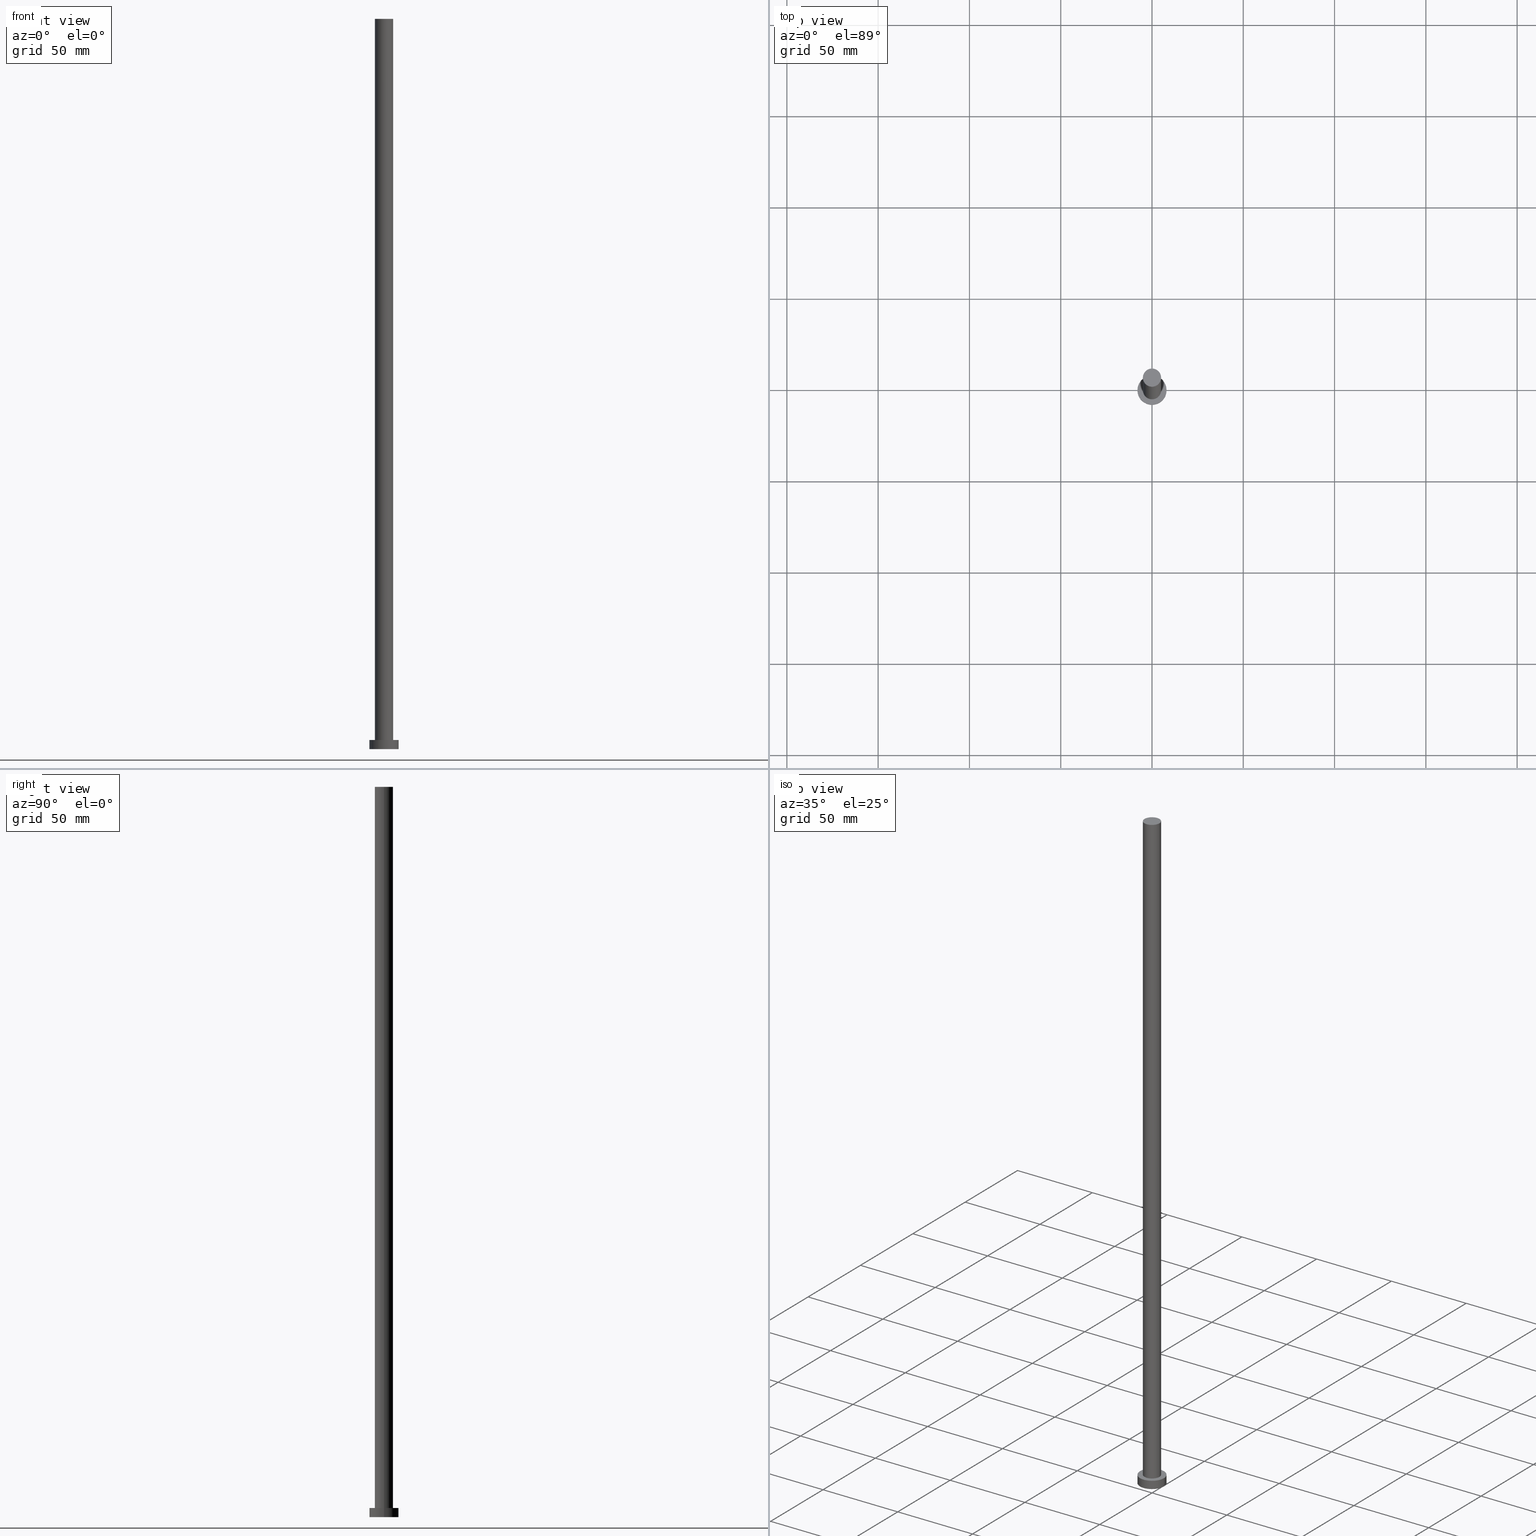
[diagram: canonical four-view strip — front | top / right | iso, engineering-drawing reading convention]
A machine part, canonical four-view strip (front | top / right | iso — engineering-drawing reading convention). The complete STEP part file that produces these views, byte-faithful:
ISO-10303-21;
HEADER;
FILE_DESCRIPTION (( 'STEP AP203' ),
    '1' );
FILE_NAME ('d181.STEP',
    '2023-02-13T10:15:08',
    ( '' ),
    ( '' ),
    'SwSTEP 2.0',
    'SolidWorks 2019',
    '' );
FILE_SCHEMA (( 'CONFIG_CONTROL_DESIGN' ));
ENDSEC;

DATA;
#1 = ADVANCED_FACE ( 'NONE', ( #112 ), #58, .T. ) ;
#2 = AXIS2_PLACEMENT_3D ( 'NONE', #36, #20, #102 ) ;
#3 = CC_DESIGN_APPROVAL ( #99, ( #54 ) ) ;
#4 = CALENDAR_DATE ( 2023, 13, 2 ) ;
#5 = EDGE_CURVE ( 'NONE', #111, #113, #150, .T. ) ;
#6 = APPROVAL ( #103, 'NEUR�EN�' ) ;
#7 = APPROVAL_ROLE ( '' ) ;
#8 = ORIENTED_EDGE ( 'NONE', *, *, #241, .T. ) ;
#9 = ORIENTED_EDGE ( 'NONE', *, *, #241, .F. ) ;
#10 =( GEOMETRIC_REPRESENTATION_CONTEXT ( 3 ) GLOBAL_UNCERTAINTY_ASSIGNED_CONTEXT ( ( #158 ) ) GLOBAL_UNIT_ASSIGNED_CONTEXT ( ( #237, #104, #157 ) ) REPRESENTATION_CONTEXT ( 'NONE', 'WORKASPACE' ) );
#11 = LOCAL_TIME ( 11, 15, 8.000000000000000000, #195 ) ;
#12 = ORIENTED_EDGE ( 'NONE', *, *, #5, .T. ) ;
#13 = EDGE_LOOP ( 'NONE', ( #51, #95 ) ) ;
#14 = DIRECTION ( 'NONE',  ( 1.000000000000000000, 0.000000000000000000, 0.000000000000000000 ) ) ;
#15 = ADVANCED_FACE ( 'NONE', ( #154 ), #98, .T. ) ;
#16 = FACE_OUTER_BOUND ( 'NONE', #75, .T. ) ;
#17 = DIRECTION ( 'NONE',  ( 0.000000000000000000, 0.000000000000000000, 1.000000000000000000 ) ) ;
#18 = DIRECTION ( 'NONE',  ( 1.000000000000000000, 0.000000000000000000, 0.000000000000000000 ) ) ;
#19 = ADVANCED_FACE ( 'NONE', ( #191 ), #117, .F. ) ;
#20 = DIRECTION ( 'NONE',  ( 0.000000000000000000, 0.000000000000000000, 1.000000000000000000 ) ) ;
#21 = SHAPE_DEFINITION_REPRESENTATION ( #57, #168 ) ;
#22 = CARTESIAN_POINT ( 'NONE',  ( 0.000000000000000000, 0.000000000000000000, 0.000000000000000000 ) ) ;
#23 = EDGE_CURVE ( 'NONE', #113, #166, #100, .T. ) ;
#24 = APPLICATION_PROTOCOL_DEFINITION ( 'international standard', 'config_control_design', 1994, #223 ) ;
#25 = CIRCLE ( 'NONE', #200, 5.000000000000000000 ) ;
#26 = DIRECTION ( 'NONE',  ( -0.000000000000000000, -0.000000000000000000, -1.000000000000000000 ) ) ;
#27 = EDGE_CURVE ( 'NONE', #166, #113, #194, .T. ) ;
#28 = PERSON_AND_ORGANIZATION ( #67, #186 ) ;
#29 = MECHANICAL_CONTEXT ( 'NONE', #223, 'mechanical' ) ;
#30 = CC_DESIGN_PERSON_AND_ORGANIZATION_ASSIGNMENT ( #181, #44, ( #244 ) ) ;
#31 = DATE_AND_TIME ( #204, #224 ) ;
#32 = ORIENTED_EDGE ( 'NONE', *, *, #227, .T. ) ;
#33 = LOCAL_TIME ( 11, 15, 8.000000000000000000, #242 ) ;
#34 = VERTEX_POINT ( 'NONE', #38 ) ;
#35 = ORIENTED_EDGE ( 'NONE', *, *, #91, .T. ) ;
#36 = CARTESIAN_POINT ( 'NONE',  ( 0.000000000000000000, 0.000000000000000000, 5.000000000000000000 ) ) ;
#37 = VECTOR ( 'NONE', #192, 1000.000000000000000 ) ;
#38 = CARTESIAN_POINT ( 'NONE',  ( -8.000000000000000000, 0.000000000000000000, 5.000000000000000000 ) ) ;
#39 = DIRECTION ( 'NONE',  ( -0.000000000000000000, -0.000000000000000000, -1.000000000000000000 ) ) ;
#40 = CARTESIAN_POINT ( 'NONE',  ( 8.000000000000000000, 9.797174393178825657E-16, 0.000000000000000000 ) ) ;
#41 = CARTESIAN_POINT ( 'NONE',  ( 0.000000000000000000, 0.000000000000000000, 0.000000000000000000 ) ) ;
#42 = CARTESIAN_POINT ( 'NONE',  ( 0.000000000000000000, 0.000000000000000000, 5.000000000000000000 ) ) ;
#43 = PRODUCT_RELATED_PRODUCT_CATEGORY ( 'detail', '', ( #177 ) ) ;
#44 = PERSON_AND_ORGANIZATION_ROLE ( 'creator' ) ;
#45 = PERSON_AND_ORGANIZATION ( #67, #186 ) ;
#46 = ADVANCED_FACE ( 'NONE', ( #174 ), #56, .T. ) ;
#47 = DIRECTION ( 'NONE',  ( -1.000000000000000000, 0.000000000000000000, 0.000000000000000000 ) ) ;
#48 = PERSON_AND_ORGANIZATION ( #67, #186 ) ;
#49 = CC_DESIGN_APPROVAL ( #184, ( #202 ) ) ;
#50 = ORIENTED_EDGE ( 'NONE', *, *, #23, .T. ) ;
#51 = ORIENTED_EDGE ( 'NONE', *, *, #27, .F. ) ;
#52 = CIRCLE ( 'NONE', #120, 5.000000000000000000 ) ;
#53 = EDGE_CURVE ( 'NONE', #130, #90, #106, .T. ) ;
#54 = SECURITY_CLASSIFICATION ( '', '', #220 ) ;
#55 = ORIENTED_EDGE ( 'NONE', *, *, #84, .F. ) ;
#56 = CYLINDRICAL_SURFACE ( 'NONE', #119, 8.000000000000000000 ) ;
#57 = PRODUCT_DEFINITION_SHAPE ( 'NONE', 'NONE',  #244 ) ;
#58 = CYLINDRICAL_SURFACE ( 'NONE', #249, 8.000000000000000000 ) ;
#59 = DIRECTION ( 'NONE',  ( 0.000000000000000000, 0.000000000000000000, 1.000000000000000000 ) ) ;
#60 = CARTESIAN_POINT ( 'NONE',  ( 0.000000000000000000, 0.000000000000000000, 5.000000000000000000 ) ) ;
#61 = FACE_BOUND ( 'NONE', #164, .T. ) ;
#62 = CC_DESIGN_SECURITY_CLASSIFICATION ( #54, ( #202 ) ) ;
#63 = PERSON_AND_ORGANIZATION_ROLE ( 'design_owner' ) ;
#64 = CARTESIAN_POINT ( 'NONE',  ( 5.000000000000000000, 6.123233995736765296E-16, 400.0000000000000000 ) ) ;
#65 = COORDINATED_UNIVERSAL_TIME_OFFSET ( 1, 0, .AHEAD. ) ;
#66 = VECTOR ( 'NONE', #69, 1000.000000000000000 ) ;
#67 = PERSON ( 'NEUR�EN�', 'NEUR�EN�', 'NEUR�EN�', ('NEUR�EN�'), ('NEUR�EN�'), ('NEUR�EN�') ) ;
#68 = APPROVAL_STATUS ( 'not_yet_approved' ) ;
#69 = DIRECTION ( 'NONE',  ( -0.000000000000000000, -0.000000000000000000, -1.000000000000000000 ) ) ;
#70 = EDGE_CURVE ( 'NONE', #147, #130, #80, .T. ) ;
#71 = EDGE_LOOP ( 'NONE', ( #187, #8, #206, #167 ) ) ;
#72 = CIRCLE ( 'NONE', #165, 8.000000000000000000 ) ;
#73 = ORIENTED_EDGE ( 'NONE', *, *, #91, .F. ) ;
#74 = ORIENTED_EDGE ( 'NONE', *, *, #53, .F. ) ;
#75 = EDGE_LOOP ( 'NONE', ( #183, #149 ) ) ;
#76 = CARTESIAN_POINT ( 'NONE',  ( -8.000000000000000000, 0.000000000000000000, 0.000000000000000000 ) ) ;
#77 = DIRECTION ( 'NONE',  ( -0.000000000000000000, -0.000000000000000000, -1.000000000000000000 ) ) ;
#78 = CLOSED_SHELL ( 'NONE', ( #197, #46, #1, #131, #19, #15, #160 ) ) ;
#79 = APPROVAL_PERSON_ORGANIZATION ( #45, #6, #255 ) ;
#80 = LINE ( 'NONE', #173, #221 ) ;
#81 = PLANE ( 'NONE',  #2 ) ;
#82 = CARTESIAN_POINT ( 'NONE',  ( 0.000000000000000000, 0.000000000000000000, 0.000000000000000000 ) ) ;
#83 = APPROVAL_DATE_TIME ( #179, #184 ) ;
#84 = EDGE_CURVE ( 'NONE', #147, #245, #254, .T. ) ;
#85 = CALENDAR_DATE ( 2023, 13, 2 ) ;
#86 = DATE_AND_TIME ( #85, #208 ) ;
#87 = AXIS2_PLACEMENT_3D ( 'NONE', #228, #248, #193 ) ;
#88 = DATE_TIME_ROLE ( 'creation_date' ) ;
#89 = PERSON_AND_ORGANIZATION_ROLE ( 'classification_officer' ) ;
#90 = VERTEX_POINT ( 'NONE', #121 ) ;
#91 = EDGE_CURVE ( 'NONE', #34, #111, #72, .T. ) ;
#92 = EDGE_LOOP ( 'NONE', ( #207, #73, #225, #146 ) ) ;
#93 = AXIS2_PLACEMENT_3D ( 'NONE', #96, #247, #137 ) ;
#94 = EDGE_LOOP ( 'NONE', ( #35, #32 ) ) ;
#95 = ORIENTED_EDGE ( 'NONE', *, *, #23, .F. ) ;
#96 = CARTESIAN_POINT ( 'NONE',  ( 0.000000000000000000, 0.000000000000000000, 400.0000000000000000 ) ) ;
#97 = DIRECTION ( 'NONE',  ( 0.000000000000000000, 0.000000000000000000, 1.000000000000000000 ) ) ;
#98 = CYLINDRICAL_SURFACE ( 'NONE', #175, 5.000000000000000000 ) ;
#99 = APPROVAL ( #107, 'NEUR�EN�' ) ;
#100 = CIRCLE ( 'NONE', #132, 8.000000000000000000 ) ;
#101 = CARTESIAN_POINT ( 'NONE',  ( 0.000000000000000000, 0.000000000000000000, 400.0000000000000000 ) ) ;
#102 = DIRECTION ( 'NONE',  ( 1.000000000000000000, 0.000000000000000000, -0.000000000000000000 ) ) ;
#103 = APPROVAL_STATUS ( 'not_yet_approved' ) ;
#104 =( NAMED_UNIT ( * ) PLANE_ANGLE_UNIT ( ) SI_UNIT ( $, .RADIAN. ) );
#105 = LINE ( 'NONE', #218, #66 ) ;
#106 = CIRCLE ( 'NONE', #188, 5.000000000000000000 ) ;
#107 = APPROVAL_STATUS ( 'not_yet_approved' ) ;
#108 = EDGE_CURVE ( 'NONE', #90, #130, #52, .T. ) ;
#109 = EDGE_LOOP ( 'NONE', ( #145, #12, #50, #185 ) ) ;
#110 = AXIS2_PLACEMENT_3D ( 'NONE', #41, #17, #232 ) ;
#111 = VERTEX_POINT ( 'NONE', #212 ) ;
#112 = FACE_OUTER_BOUND ( 'NONE', #92, .T. ) ;
#113 = VERTEX_POINT ( 'NONE', #40 ) ;
#114 = DIRECTION ( 'NONE',  ( 1.000000000000000000, 0.000000000000000000, 0.000000000000000000 ) ) ;
#115 = AXIS2_PLACEMENT_3D ( 'NONE', #152, #213, #18 ) ;
#116 = DIRECTION ( 'NONE',  ( 0.000000000000000000, 0.000000000000000000, 1.000000000000000000 ) ) ;
#117 = PLANE ( 'NONE',  #110 ) ;
#118 = CARTESIAN_POINT ( 'NONE',  ( 8.000000000000000000, 9.797174393178825657E-16, 5.000000000000000000 ) ) ;
#119 = AXIS2_PLACEMENT_3D ( 'NONE', #233, #250, #252 ) ;
#120 = AXIS2_PLACEMENT_3D ( 'NONE', #151, #59, #138 ) ;
#121 = CARTESIAN_POINT ( 'NONE',  ( 5.000000000000000000, 6.123233995736765296E-16, 5.000000000000000000 ) ) ;
#122 = EDGE_CURVE ( 'NONE', #245, #147, #25, .T. ) ;
#123 = DATE_AND_TIME ( #214, #11 ) ;
#124 = LINE ( 'NONE', #198, #234 ) ;
#125 = APPLICATION_PROTOCOL_DEFINITION ( 'international standard', 'config_control_design', 1994, #238 ) ;
#126 = AXIS2_PLACEMENT_3D ( 'NONE', #217, #141, #47 ) ;
#127 = FACE_OUTER_BOUND ( 'NONE', #71, .T. ) ;
#128 = PERSON_AND_ORGANIZATION_ROLE ( 'design_supplier' ) ;
#129 = CC_DESIGN_APPROVAL ( #6, ( #244 ) ) ;
#130 = VERTEX_POINT ( 'NONE', #172 ) ;
#131 = ADVANCED_FACE ( 'NONE', ( #61, #176 ), #81, .T. ) ;
#132 = AXIS2_PLACEMENT_3D ( 'NONE', #82, #97, #189 ) ;
#133 = APPROVAL_PERSON_ORGANIZATION ( #144, #99, #7 ) ;
#134 = ORIENTED_EDGE ( 'NONE', *, *, #108, .F. ) ;
#135 = MANIFOLD_SOLID_BREP ( 'P�idat vysunut�m3', #78 ) ;
#136 = DIRECTION ( 'NONE',  ( -0.000000000000000000, -0.000000000000000000, -1.000000000000000000 ) ) ;
#137 = DIRECTION ( 'NONE',  ( 1.000000000000000000, 0.000000000000000000, -0.000000000000000000 ) ) ;
#138 = DIRECTION ( 'NONE',  ( 1.000000000000000000, 0.000000000000000000, 0.000000000000000000 ) ) ;
#139 = DIRECTION ( 'NONE',  ( 1.000000000000000000, 0.000000000000000000, 0.000000000000000000 ) ) ;
#140 = PLANE ( 'NONE',  #93 ) ;
#141 = DIRECTION ( 'NONE',  ( -0.000000000000000000, -0.000000000000000000, -1.000000000000000000 ) ) ;
#142 = CC_DESIGN_PERSON_AND_ORGANIZATION_ASSIGNMENT ( #182, #89, ( #54 ) ) ;
#143 = APPROVAL_ROLE ( '' ) ;
#144 = PERSON_AND_ORGANIZATION ( #67, #186 ) ;
#145 = ORIENTED_EDGE ( 'NONE', *, *, #227, .F. ) ;
#146 = ORIENTED_EDGE ( 'NONE', *, *, #27, .T. ) ;
#147 = VERTEX_POINT ( 'NONE', #178 ) ;
#148 = LOCAL_TIME ( 11, 15, 8.000000000000000000, #65 ) ;
#149 = ORIENTED_EDGE ( 'NONE', *, *, #122, .T. ) ;
#150 = LINE ( 'NONE', #118, #37 ) ;
#151 = CARTESIAN_POINT ( 'NONE',  ( 0.000000000000000000, 0.000000000000000000, 5.000000000000000000 ) ) ;
#152 = CARTESIAN_POINT ( 'NONE',  ( 0.000000000000000000, 0.000000000000000000, 400.0000000000000000 ) ) ;
#153 = DIRECTION ( 'NONE',  ( -1.000000000000000000, 0.000000000000000000, 0.000000000000000000 ) ) ;
#154 = FACE_OUTER_BOUND ( 'NONE', #169, .T. ) ;
#155 = PERSON_AND_ORGANIZATION ( #67, #186 ) ;
#156 = APPROVAL_PERSON_ORGANIZATION ( #28, #184, #143 ) ;
#157 =( NAMED_UNIT ( * ) SI_UNIT ( $, .STERADIAN. ) SOLID_ANGLE_UNIT ( ) );
#158 = UNCERTAINTY_MEASURE_WITH_UNIT (LENGTH_MEASURE( 1.000000000000000082E-05 ), #237, 'distance_accuracy_value', 'NONE');
#159 = COORDINATED_UNIVERSAL_TIME_OFFSET ( 1, 0, .AHEAD. ) ;
#160 = ADVANCED_FACE ( 'NONE', ( #16 ), #140, .T. ) ;
#161 = CC_DESIGN_DATE_AND_TIME_ASSIGNMENT ( #31, #243, ( #54 ) ) ;
#162 = PERSON_AND_ORGANIZATION ( #67, #186 ) ;
#163 = COORDINATED_UNIVERSAL_TIME_OFFSET ( 1, 0, .AHEAD. ) ;
#164 = EDGE_LOOP ( 'NONE', ( #74, #134 ) ) ;
#165 = AXIS2_PLACEMENT_3D ( 'NONE', #231, #196, #14 ) ;
#166 = VERTEX_POINT ( 'NONE', #76 ) ;
#167 = ORIENTED_EDGE ( 'NONE', *, *, #70, .F. ) ;
#168 = ADVANCED_BREP_SHAPE_REPRESENTATION ( 'd181', ( #135, #190 ), #10 ) ;
#169 = EDGE_LOOP ( 'NONE', ( #9, #55, #246, #209 ) ) ;
#170 = CIRCLE ( 'NONE', #205, 8.000000000000000000 ) ;
#171 = CC_DESIGN_PERSON_AND_ORGANIZATION_ASSIGNMENT ( #48, #128, ( #202 ) ) ;
#172 = CARTESIAN_POINT ( 'NONE',  ( -5.000000000000000000, 0.000000000000000000, 5.000000000000000000 ) ) ;
#173 = CARTESIAN_POINT ( 'NONE',  ( -5.000000000000000000, 0.000000000000000000, 400.0000000000000000 ) ) ;
#174 = FACE_OUTER_BOUND ( 'NONE', #109, .T. ) ;
#175 = AXIS2_PLACEMENT_3D ( 'NONE', #211, #136, #251 ) ;
#176 = FACE_OUTER_BOUND ( 'NONE', #94, .T. ) ;
#177 = PRODUCT ( 'd181', 'd181', '', ( #29 ) ) ;
#178 = CARTESIAN_POINT ( 'NONE',  ( -5.000000000000000000, 0.000000000000000000, 400.0000000000000000 ) ) ;
#179 = DATE_AND_TIME ( #215, #33 ) ;
#180 = EDGE_CURVE ( 'NONE', #34, #166, #105, .T. ) ;
#181 = PERSON_AND_ORGANIZATION ( #67, #186 ) ;
#182 = PERSON_AND_ORGANIZATION ( #67, #186 ) ;
#183 = ORIENTED_EDGE ( 'NONE', *, *, #84, .T. ) ;
#184 = APPROVAL ( #68, 'NEUR�EN�' ) ;
#185 = ORIENTED_EDGE ( 'NONE', *, *, #180, .F. ) ;
#186 = ORGANIZATION ( 'NEUR�EN�', 'NEUR�EN�', '' ) ;
#187 = ORIENTED_EDGE ( 'NONE', *, *, #122, .F. ) ;
#188 = AXIS2_PLACEMENT_3D ( 'NONE', #60, #210, #139 ) ;
#189 = DIRECTION ( 'NONE',  ( 1.000000000000000000, 0.000000000000000000, 0.000000000000000000 ) ) ;
#190 = AXIS2_PLACEMENT_3D ( 'NONE', #22, #203, #239 ) ;
#191 = FACE_OUTER_BOUND ( 'NONE', #13, .T. ) ;
#192 = DIRECTION ( 'NONE',  ( -0.000000000000000000, -0.000000000000000000, -1.000000000000000000 ) ) ;
#193 = DIRECTION ( 'NONE',  ( 1.000000000000000000, 0.000000000000000000, 0.000000000000000000 ) ) ;
#194 = CIRCLE ( 'NONE', #87, 8.000000000000000000 ) ;
#195 = COORDINATED_UNIVERSAL_TIME_OFFSET ( 1, 0, .AHEAD. ) ;
#196 = DIRECTION ( 'NONE',  ( 0.000000000000000000, 0.000000000000000000, 1.000000000000000000 ) ) ;
#197 = ADVANCED_FACE ( 'NONE', ( #127 ), #201, .T. ) ;
#198 = CARTESIAN_POINT ( 'NONE',  ( 5.000000000000000000, 6.123233995736765296E-16, 400.0000000000000000 ) ) ;
#199 = DIRECTION ( 'NONE',  ( 1.000000000000000000, 0.000000000000000000, 0.000000000000000000 ) ) ;
#200 = AXIS2_PLACEMENT_3D ( 'NONE', #101, #116, #114 ) ;
#201 = CYLINDRICAL_SURFACE ( 'NONE', #126, 5.000000000000000000 ) ;
#202 = PRODUCT_DEFINITION_FORMATION_WITH_SPECIFIED_SOURCE ( 'LIBOVOLN�', '', #177, .NOT_KNOWN. ) ;
#203 = DIRECTION ( 'NONE',  ( 0.000000000000000000, 0.000000000000000000, 1.000000000000000000 ) ) ;
#204 = CALENDAR_DATE ( 2023, 13, 2 ) ;
#205 = AXIS2_PLACEMENT_3D ( 'NONE', #42, #219, #199 ) ;
#206 = ORIENTED_EDGE ( 'NONE', *, *, #108, .T. ) ;
#207 = ORIENTED_EDGE ( 'NONE', *, *, #5, .F. ) ;
#208 = LOCAL_TIME ( 11, 15, 8.000000000000000000, #159 ) ;
#209 = ORIENTED_EDGE ( 'NONE', *, *, #53, .T. ) ;
#210 = DIRECTION ( 'NONE',  ( 0.000000000000000000, 0.000000000000000000, 1.000000000000000000 ) ) ;
#211 = CARTESIAN_POINT ( 'NONE',  ( 0.000000000000000000, 0.000000000000000000, 400.0000000000000000 ) ) ;
#212 = CARTESIAN_POINT ( 'NONE',  ( 8.000000000000000000, 9.797174393178825657E-16, 5.000000000000000000 ) ) ;
#213 = DIRECTION ( 'NONE',  ( 0.000000000000000000, 0.000000000000000000, 1.000000000000000000 ) ) ;
#214 = CALENDAR_DATE ( 2023, 13, 2 ) ;
#215 = CALENDAR_DATE ( 2023, 13, 2 ) ;
#216 = CC_DESIGN_PERSON_AND_ORGANIZATION_ASSIGNMENT ( #155, #235, ( #202 ) ) ;
#217 = CARTESIAN_POINT ( 'NONE',  ( 0.000000000000000000, 0.000000000000000000, 400.0000000000000000 ) ) ;
#218 = CARTESIAN_POINT ( 'NONE',  ( -8.000000000000000000, 0.000000000000000000, 5.000000000000000000 ) ) ;
#219 = DIRECTION ( 'NONE',  ( 0.000000000000000000, 0.000000000000000000, 1.000000000000000000 ) ) ;
#220 = SECURITY_CLASSIFICATION_LEVEL ( 'unclassified' ) ;
#221 = VECTOR ( 'NONE', #77, 1000.000000000000000 ) ;
#222 = CC_DESIGN_PERSON_AND_ORGANIZATION_ASSIGNMENT ( #162, #63, ( #177 ) ) ;
#223 = APPLICATION_CONTEXT ( 'configuration controlled 3d designs of mechanical parts and assemblies' ) ;
#224 = LOCAL_TIME ( 11, 15, 8.000000000000000000, #163 ) ;
#225 = ORIENTED_EDGE ( 'NONE', *, *, #180, .T. ) ;
#226 = CARTESIAN_POINT ( 'NONE',  ( 0.000000000000000000, 0.000000000000000000, 5.000000000000000000 ) ) ;
#227 = EDGE_CURVE ( 'NONE', #111, #34, #170, .T. ) ;
#228 = CARTESIAN_POINT ( 'NONE',  ( 0.000000000000000000, 0.000000000000000000, 0.000000000000000000 ) ) ;
#229 = APPROVAL_DATE_TIME ( #123, #99 ) ;
#230 = CC_DESIGN_DATE_AND_TIME_ASSIGNMENT ( #240, #88, ( #244 ) ) ;
#231 = CARTESIAN_POINT ( 'NONE',  ( 0.000000000000000000, 0.000000000000000000, 5.000000000000000000 ) ) ;
#232 = DIRECTION ( 'NONE',  ( 1.000000000000000000, 0.000000000000000000, -0.000000000000000000 ) ) ;
#233 = CARTESIAN_POINT ( 'NONE',  ( 0.000000000000000000, 0.000000000000000000, 5.000000000000000000 ) ) ;
#234 = VECTOR ( 'NONE', #26, 1000.000000000000000 ) ;
#235 = PERSON_AND_ORGANIZATION_ROLE ( 'creator' ) ;
#236 = DESIGN_CONTEXT ( 'detailed design', #238, 'design' ) ;
#237 =( LENGTH_UNIT ( ) NAMED_UNIT ( * ) SI_UNIT ( .MILLI., .METRE. ) );
#238 = APPLICATION_CONTEXT ( 'configuration controlled 3d designs of mechanical parts and assemblies' ) ;
#239 = DIRECTION ( 'NONE',  ( 1.000000000000000000, 0.000000000000000000, 0.000000000000000000 ) ) ;
#240 = DATE_AND_TIME ( #4, #148 ) ;
#241 = EDGE_CURVE ( 'NONE', #245, #90, #124, .T. ) ;
#242 = COORDINATED_UNIVERSAL_TIME_OFFSET ( 1, 0, .AHEAD. ) ;
#243 = DATE_TIME_ROLE ( 'classification_date' ) ;
#244 = PRODUCT_DEFINITION ( 'NEZN�M�', '', #202, #236 ) ;
#245 = VERTEX_POINT ( 'NONE', #64 ) ;
#246 = ORIENTED_EDGE ( 'NONE', *, *, #70, .T. ) ;
#247 = DIRECTION ( 'NONE',  ( 0.000000000000000000, 0.000000000000000000, 1.000000000000000000 ) ) ;
#248 = DIRECTION ( 'NONE',  ( 0.000000000000000000, 0.000000000000000000, 1.000000000000000000 ) ) ;
#249 = AXIS2_PLACEMENT_3D ( 'NONE', #226, #39, #153 ) ;
#250 = DIRECTION ( 'NONE',  ( -0.000000000000000000, -0.000000000000000000, -1.000000000000000000 ) ) ;
#251 = DIRECTION ( 'NONE',  ( -1.000000000000000000, 0.000000000000000000, 0.000000000000000000 ) ) ;
#252 = DIRECTION ( 'NONE',  ( -1.000000000000000000, 0.000000000000000000, 0.000000000000000000 ) ) ;
#253 = APPROVAL_DATE_TIME ( #86, #6 ) ;
#254 = CIRCLE ( 'NONE', #115, 5.000000000000000000 ) ;
#255 = APPROVAL_ROLE ( '' ) ;
ENDSEC;
END-ISO-10303-21;
